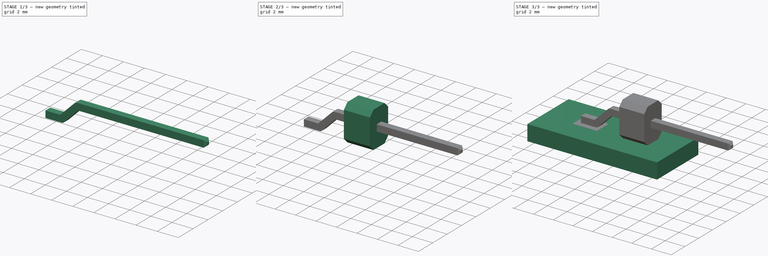
[diagram: build sequence overview — one tinted view per stage of 3, left to right]
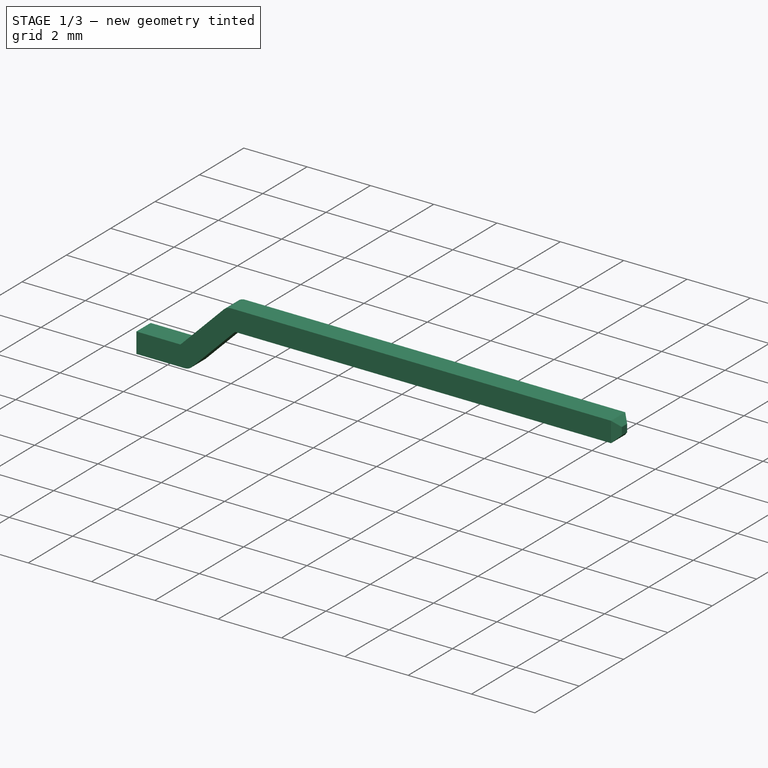
[diagram: stage 1 of 3 — iso view after this stage's code; geometry added in this stage tinted green]
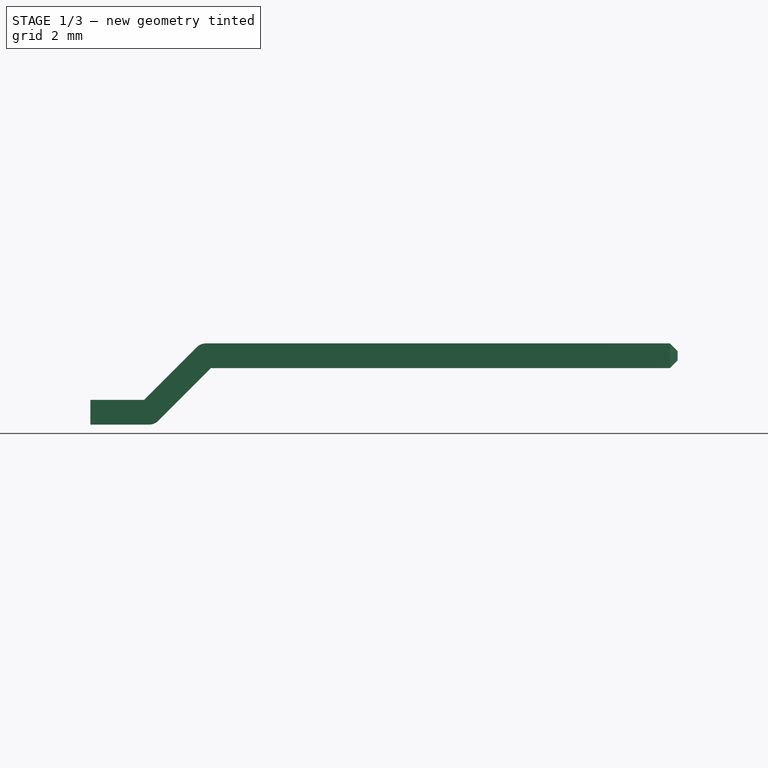
[diagram: stage 1 of 3 — front view after this stage's code; geometry added in this stage tinted green]
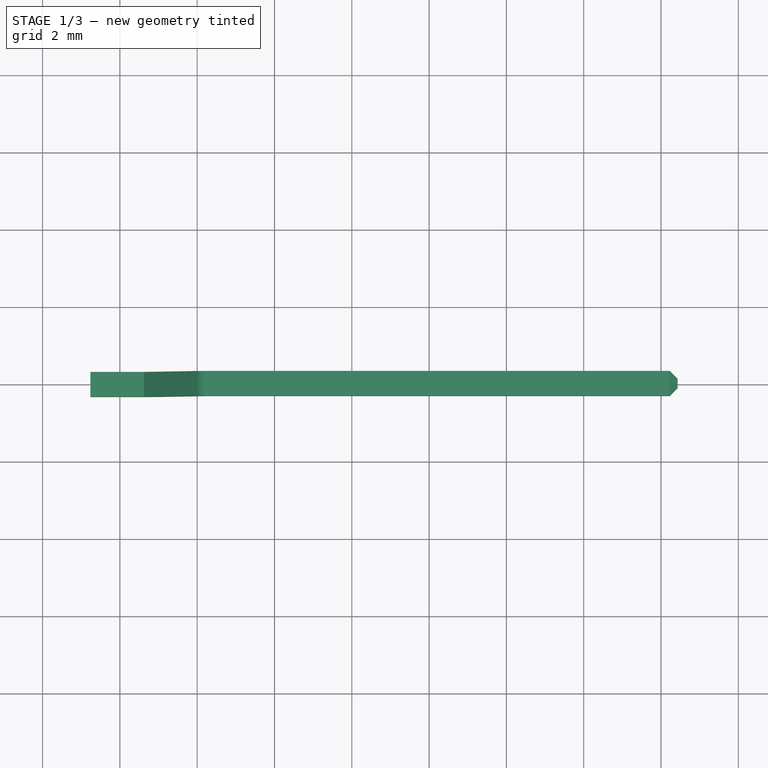
[diagram: stage 1 of 3 — top view after this stage's code; geometry added in this stage tinted green]
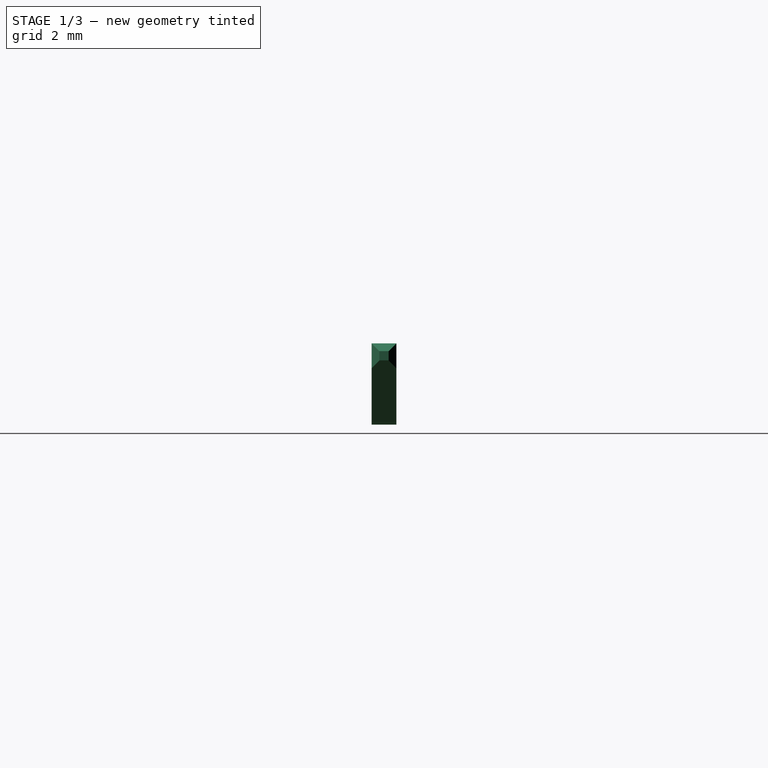
[diagram: stage 1 of 3 — right view after this stage's code; geometry added in this stage tinted green]
FCSTD DOCUMENT  (FreeCAD 0.19R23323 (Git))
Label: Header_SMD_01x01_P2.54mm_Horizontal_Male
License: All rights reserved
LicenseURL: http://en.wikipedia.org/wiki/All_rights_reserved
objects: Part::FeaturePython×5, Sketcher::SketchObject×3, PartDesign::Chamfer×2, PartDesign::Body×2, Spreadsheet::Sheet×1, App::DocumentObjectGroup×1, PartDesign::AdditivePipe×1, PartDesign::ShapeBinder×1, PartDesign::Plane×1, PartDesign::Pad×1
note: 20 computed .brp shape members not serialized (recipe doc carries the construction recipe); baked Part::Feature solids carry a one-line shape summary decoded from their .brp

FEATURE [App::DocumentObjectGroup] _module_fp
  Group = -> [FCrtYd_lines,FFab_lines,Filk_lines,TopPads,newPCB]
FEATURE [Sketcher::SketchObject] Sketch
  MapMode = 5
  Placement = pos=(0,0,0) rot=(1,0,0;1.5708rad)
  Support = -> [XZ_Plane]
  expr: Constraints[15] = Spreadsheet.TailLength / 6
  expr: Constraints[13] = Spreadsheet.ContactDiameter / 2
  expr: Constraints[12] = Spreadsheet.InsulationHeight / 2 - Spreadsheet.ContactDiameter / 2
  expr: Constraints[11] = Spreadsheet.TailLength / 3
  expr: Constraints[10] = Spreadsheet.HeadLength
  expr: Constraints[8] = Spreadsheet.TailLength
  expr: Constraints[9] = Spreadsheet.InsulationThickness
  sketch-geometry (5):
    g0: LineSegment StartX=-0.761667 StartY=0.32 StartZ=0 EndX=0.761667 EndY=0.32 EndZ=0
    g1: LineSegment StartX=0.761667 StartY=0.32 StartZ=0 EndX=2.22167 EndY=1.78 EndZ=0
    g2: LineSegment StartX=2.22167 StartY=1.78 StartZ=0 EndX=3.80833 EndY=1.78 EndZ=0
    g3: LineSegment StartX=3.80833 StartY=1.78 StartZ=0 EndX=6.34833 EndY=1.78 EndZ=0
    g4: LineSegment StartX=6.34833 StartY=1.78 StartZ=0 EndX=14.4283 EndY=1.78 EndZ=0
  constraints (16):
    c: Horizontal(g0)
    c: Coincident(g0,g1)
    c: Coincident(g1,g2)
    c: Horizontal(g2)
    c: Coincident(g2,g3)
    c: Horizontal(g3)
    c: Coincident(g3,g4)
    c: Horizontal(g4)
    c: DistanceX(g0,g2) = 4.57
    c: DistanceX(g2,g3) = 2.54
    c: DistanceX(g3,g4) = 8.08
    c: DistanceX(g0,g0) = 1.52333
    c: DistanceY(g0,g1) = 1.46
    c: DistanceY(g-1,g0) = 0.32
    c: Angle(g1,g2) = 2.35619
    c: DistanceX(g0,g-1) = 0.761667
FEATURE [Sketcher::SketchObject] Sketch001
  ExternalGeometry = -> [Sketch]
  MapMode = 5
  Placement = pos=(0,0,0) rot=(0.57735,0.57735,0.57735;2.0944rad)
  Support = -> [YZ_Plane]
  expr: Constraints[10] = Spreadsheet.ContactDiameter
  sketch-geometry (4):
    g0: LineSegment StartX=-0.32 StartY=0.64 StartZ=0 EndX=0.32 EndY=0.64 EndZ=0
    g1: LineSegment StartX=0.32 StartY=0.64 StartZ=0 EndX=0.32 EndY=0 EndZ=0
    g2: LineSegment StartX=0.32 StartY=0 StartZ=0 EndX=-0.32 EndY=0 EndZ=0
    g3: LineSegment StartX=-0.32 StartY=0 StartZ=0 EndX=-0.32 EndY=0.64 EndZ=0
  constraints (11):
    c: Coincident(g0,g1)
    c: Coincident(g1,g2)
    c: Coincident(g2,g3)
    c: Coincident(g3,g0)
    c: Horizontal(g0)
    c: Horizontal(g2)
    c: Vertical(g1)
    c: Vertical(g3)
    c: Symmetric(g0,g1,g-3)
    c: Equal(g0,g1)
    c: DistanceY(g1,g1) = 0.64
FEATURE [PartDesign::AdditivePipe] AdditivePipe
  AuxilleryCurvelinear = true
  AuxillerySpineTangent = false
  Binormal = (0,0,0)
  Mode = 0
  Placement = pos=(0,0,0) rot=(0.57735,0.57735,0.57735;2.0944rad)
  Profile = -> Sketch001
  Spine = -> Sketch
  SpineTangent = false
  Transformation = 0
  Transition = 2
FEATURE [PartDesign::Body] Body001  label="Insulation"
  Group = -> [ShapeBinder,DatumPlane,Sketch002,Pad,Chamfer]
  Origin = -> Origin001
  Tip = -> Chamfer
FEATURE [PartDesign::Chamfer] Chamfer001
  Angle = 45
  Base = -> AdditivePipe [Edge49,Edge50,Edge51,Edge52]
  BaseFeature = -> AdditivePipe
  ChamferType = 0
  FlipDirection = false
  Placement = pos=(0,0,0) rot=(0.57735,0.57735,0.57735;2.0944rad)
  Size = 0.2
  Size2 = 0.3
  SupportTransform = false
FEATURE [PartDesign::Body] Body  label="Pin"
  Group = -> [Sketch,Sketch001,AdditivePipe,Chamfer001]
  Origin = -> Origin
  Tip = -> Chamfer001
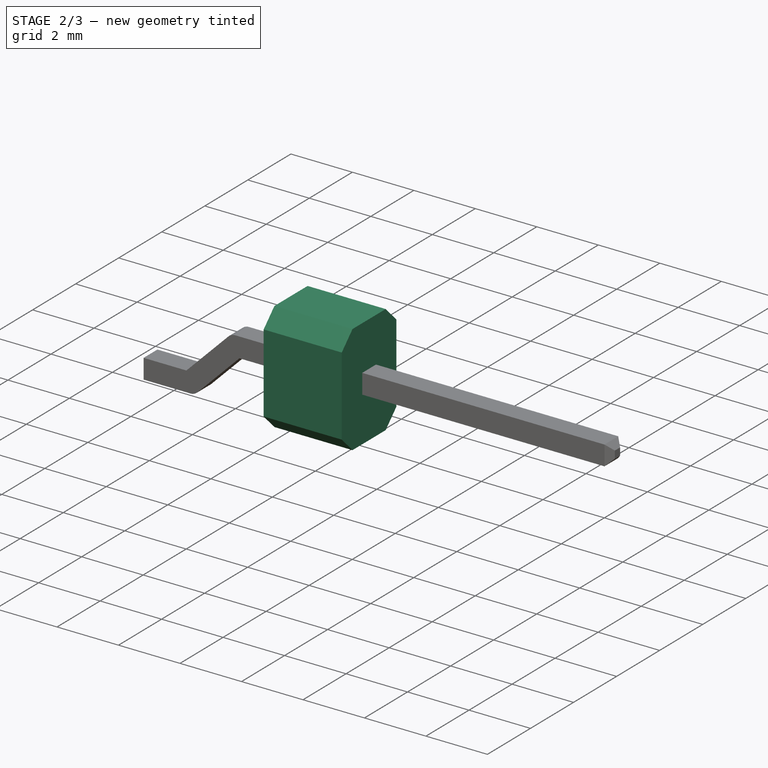
[diagram: stage 2 of 3 — iso view after this stage's code; geometry added in this stage tinted green]
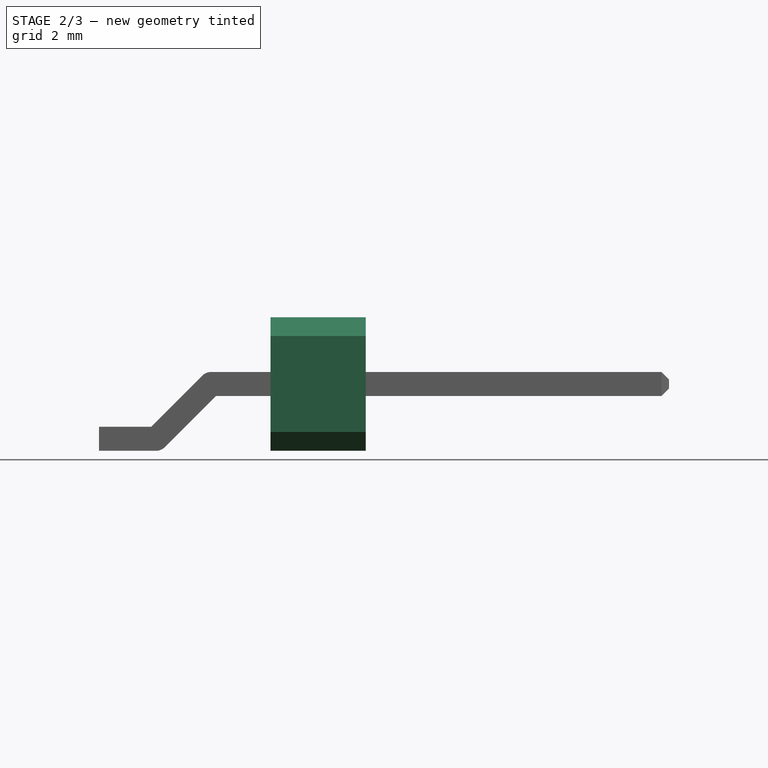
[diagram: stage 2 of 3 — front view after this stage's code; geometry added in this stage tinted green]
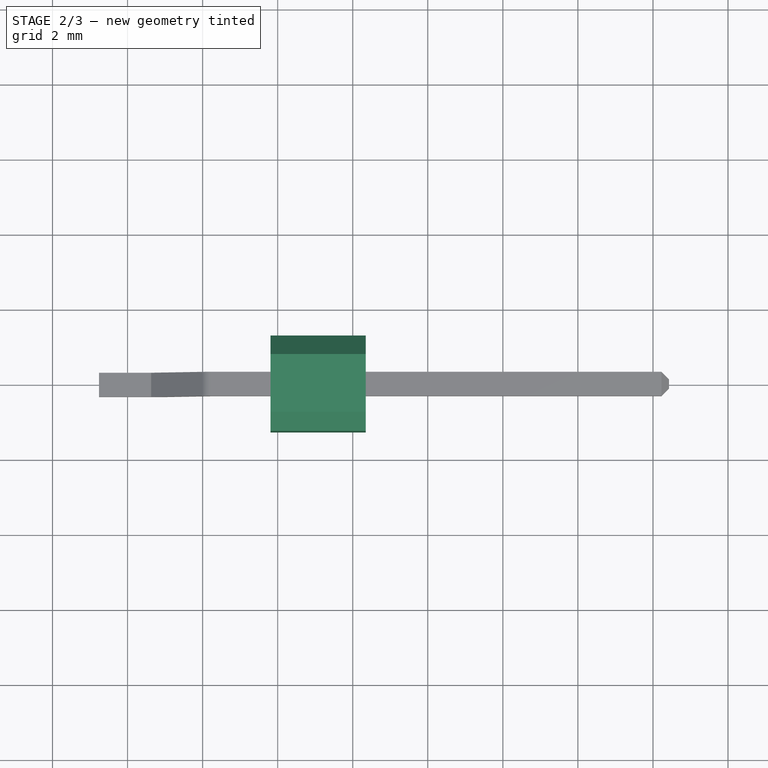
[diagram: stage 2 of 3 — top view after this stage's code; geometry added in this stage tinted green]
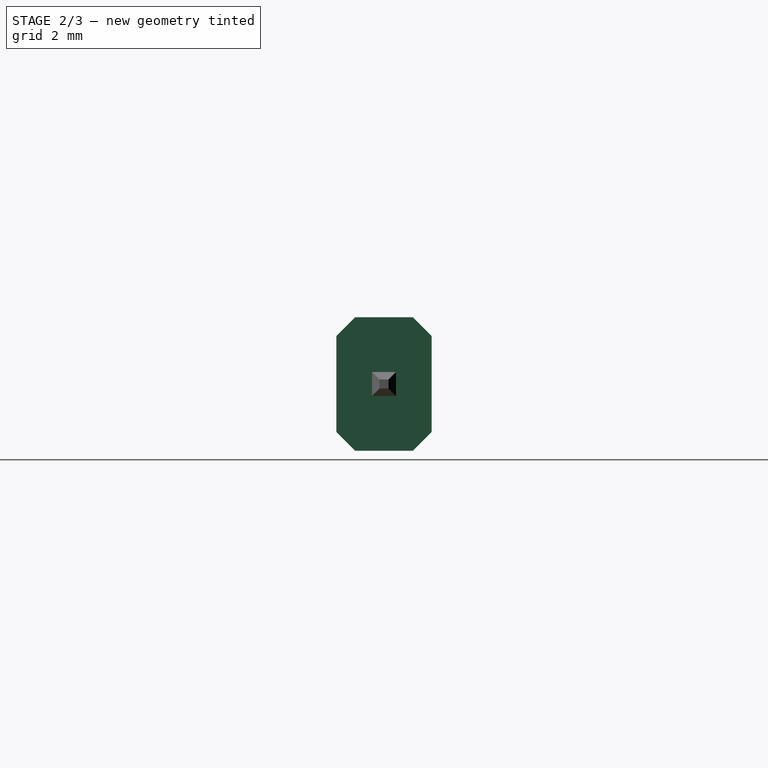
[diagram: stage 2 of 3 — right view after this stage's code; geometry added in this stage tinted green]
FEATURE [PartDesign::ShapeBinder] ShapeBinder
  Support = -> [AdditivePipe]
  TraceSupport = false
FEATURE [PartDesign::Plane] DatumPlane
  Length = 60
  MapMode = 13
  Placement = pos=(3.80833,-0.106667,1.88667) rot=(0.57735,-0.57735,-0.57735;2.0944rad)
  ResizeMode = 0
  Support = -> [ShapeBinder]
  Width = 60
FEATURE [Sketcher::SketchObject] Sketch002
  ExternalGeometry = -> [ShapeBinder]
  MapMode = 5
  Placement = pos=(3.80833,-0.106667,1.88667) rot=(0.57735,-0.57735,-0.57735;2.0944rad)
  Support = -> [DatumPlane]
  expr: Constraints[15] = Spreadsheet.InsulationHeight
  expr: Constraints[14] = Spreadsheet.InsulationWidth
  sketch-geometry (6):
    g0: LineSegment StartX=-1.37667 StartY=1.67333 StartZ=0 EndX=1.16333 EndY=1.67333 EndZ=0
    g1: LineSegment StartX=1.16333 StartY=1.67333 StartZ=0 EndX=1.16333 EndY=-1.88667 EndZ=0
    g2: LineSegment StartX=1.16333 StartY=-1.88667 StartZ=0 EndX=-1.37667 EndY=-1.88667 EndZ=0
    g3: LineSegment StartX=-1.37667 StartY=-1.88667 StartZ=0 EndX=-1.37667 EndY=1.67333 EndZ=0
    g4: LineSegment StartX=-0.426667 StartY=0.213333 StartZ=0 EndX=0.213333 EndY=-0.426667 EndZ=0
    g5: LineSegment StartX=0.213333 StartY=0.213333 StartZ=0 EndX=-0.106667 EndY=-0.106667 EndZ=0
  constraints (16):
    c: Coincident(g0,g1)
    c: Coincident(g1,g2)
    c: Coincident(g2,g3)
    c: Coincident(g3,g0)
    c: Horizontal(g0)
    c: Horizontal(g2)
    c: Vertical(g1)
    c: Vertical(g3)
    c: Coincident(g4,g-3)
    c: Coincident(g4,g-4)
    c: Coincident(g5,g-4)
    c: PointOnObject(g5,g4)
    c: Perpendicular(g4,g5)
    c: Symmetric(g0,g1,g5)
    c: DistanceX(g0,g0) = 2.54
    c: DistanceY(g1,g1) = 3.56
FEATURE [PartDesign::Pad] Pad
  Direction = (1,1,1)
  Length = 2.54
  Length2 = 100
  Placement = pos=(3.80833,-0.106667,1.88667) rot=(0.57735,-0.57735,-0.57735;2.0944rad)
  Profile = -> Sketch002
  Reversed = true
  Type = 0
  expr: Length = Spreadsheet.InsulationThickness
FEATURE [PartDesign::Chamfer] Chamfer
  Angle = 45
  Base = -> Pad [Edge2,Edge5,Edge1,Edge8]
  BaseFeature = -> Pad
  ChamferType = 0
  FlipDirection = false
  Placement = pos=(3.80833,-0.106667,1.88667) rot=(0.57735,-0.57735,-0.57735;2.0944rad)
  Size = 0.5
  Size2 = 1
  SupportTransform = false
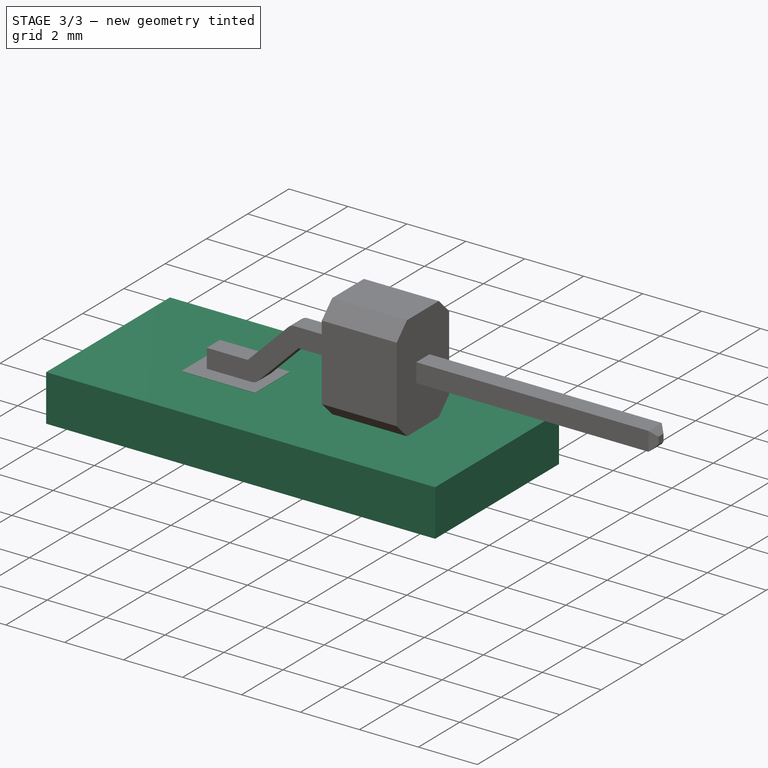
[diagram: stage 3 of 3 — iso view after this stage's code; geometry added in this stage tinted green]
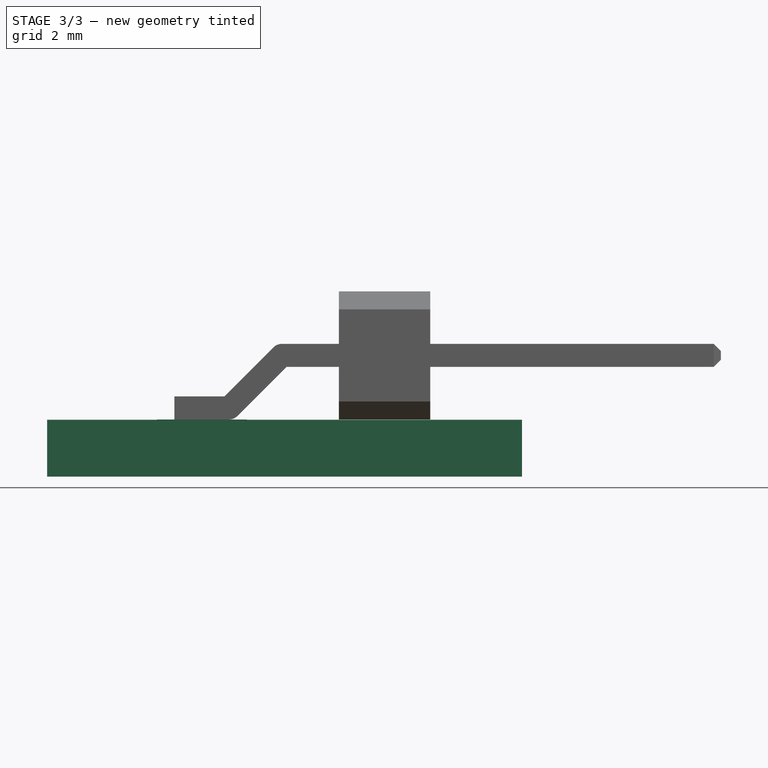
[diagram: stage 3 of 3 — front view after this stage's code; geometry added in this stage tinted green]
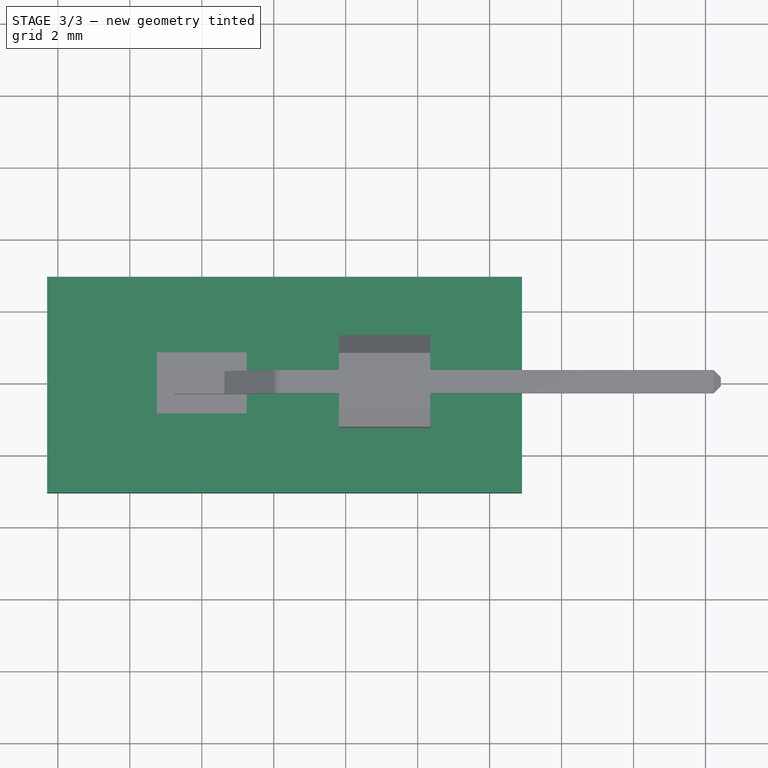
[diagram: stage 3 of 3 — top view after this stage's code; geometry added in this stage tinted green]
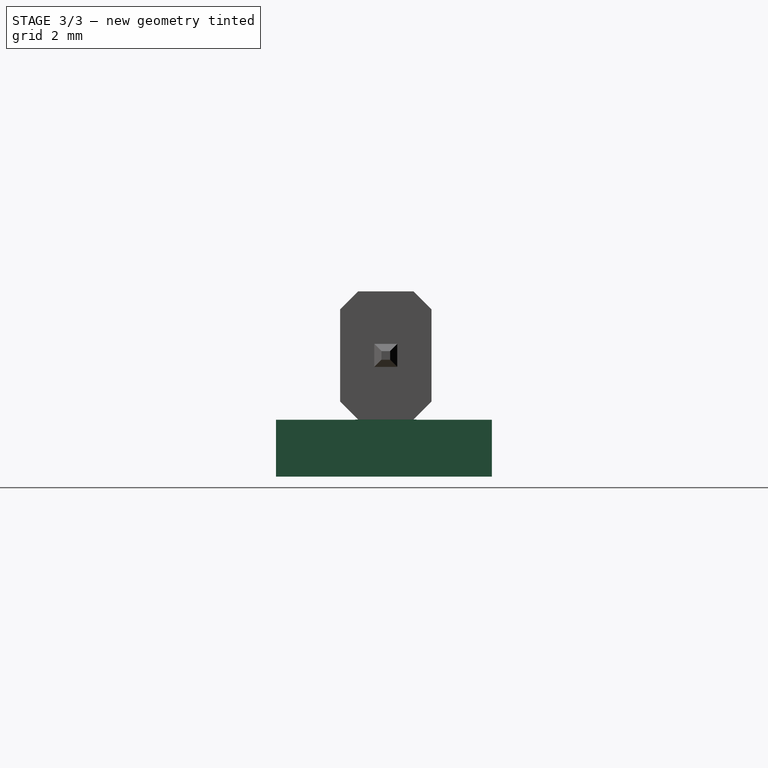
[diagram: stage 3 of 3 — right view after this stage's code; geometry added in this stage tinted green]
FEATURE [Spreadsheet::Sheet] Spreadsheet
  cells = A1=Insulation Height; B1(InsulationHeight)=3.56; A2=Insulation Thickness; B2(InsulationThickness)=2.54; A3=Insulation Width; B3(InsulationWidth)=2.54; A4=Contact Diameter; B4(ContactDiameter)=0.64; A5=Number of Contacts; B5(NumContacts)=1; A6=Head Length; B6(HeadLength)=8.08; A7=Tail Length; B7(TailLength)=4.57
FEATURE [Part::FeaturePython] FCrtYd_lines  label="FCrtYd"  # a2plus imported part (geometry in sourceFile) (typed FeaturePython)
  fixedPosition = true
FEATURE [Part::FeaturePython] FFab_lines  label="FFab"  # a2plus imported part (geometry in sourceFile) (typed FeaturePython)
  fixedPosition = true
FEATURE [Part::FeaturePython] Filk_lines  label="FrontSilk"  # a2plus imported part (geometry in sourceFile) (typed FeaturePython)
  fixedPosition = true
FEATURE [Part::FeaturePython] TopPads  # a2plus imported part (geometry in sourceFile) (typed FeaturePython)
  fixedPosition = true
FEATURE [Part::FeaturePython] newPCB  label="Pcb"  # a2plus imported part (geometry in sourceFile) (typed FeaturePython)
  fixedPosition = true
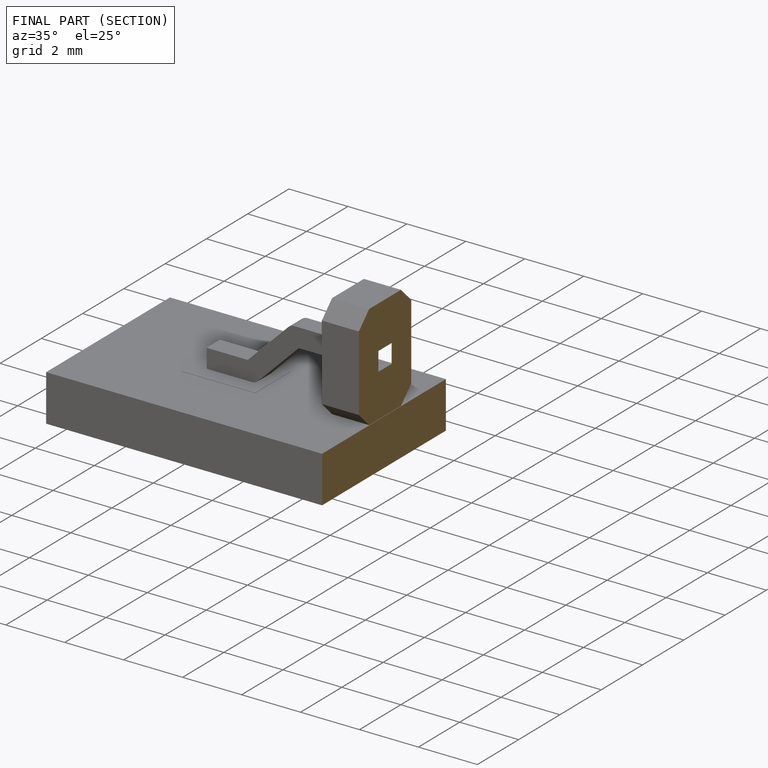
[diagram: finished part — half-section view (interior)]
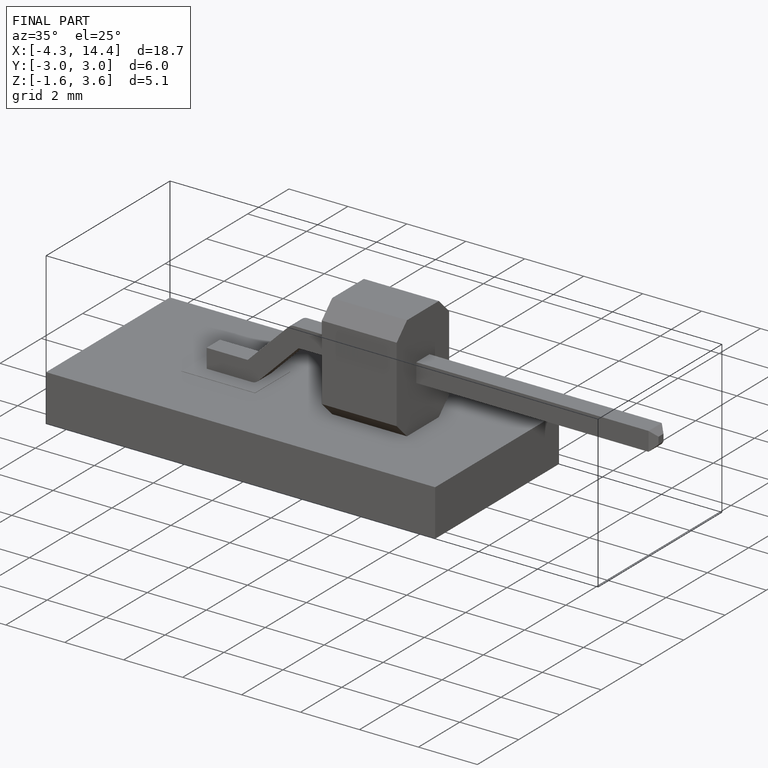
[diagram: finished part — iso view with bounding-box wireframe]
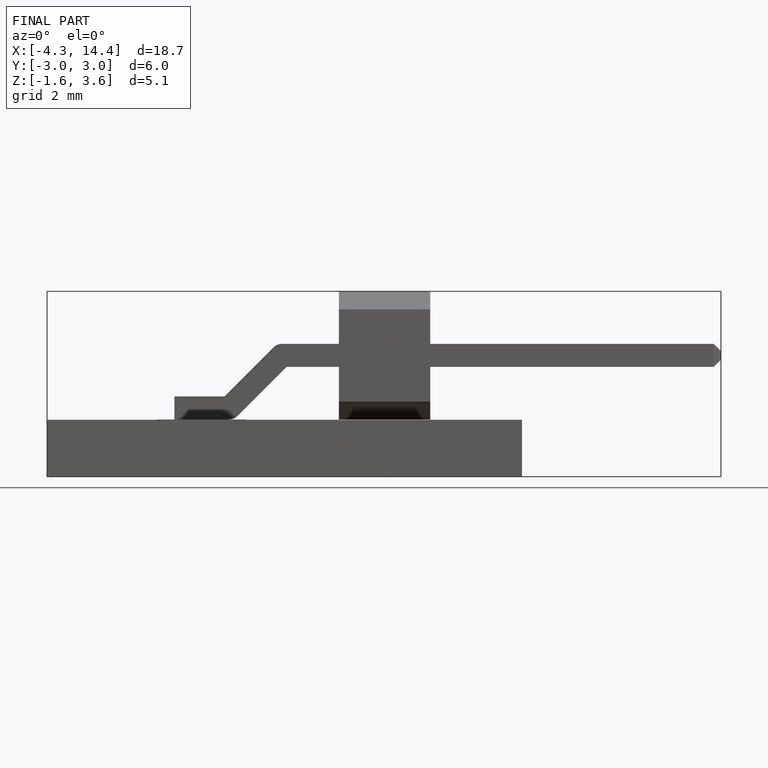
[diagram: finished part — front view with bounding-box wireframe]
